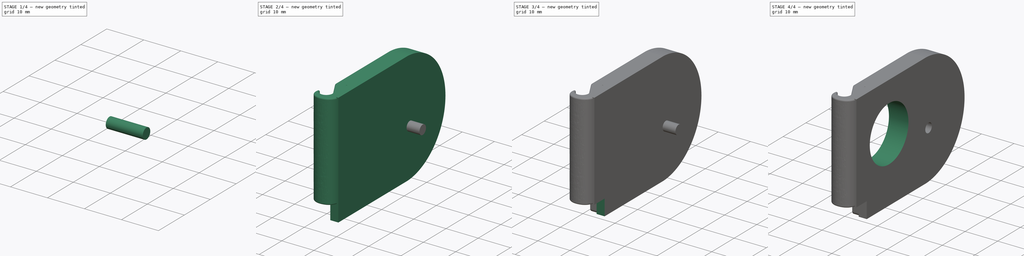
[diagram: build sequence overview — one tinted view per stage of 4, left to right]
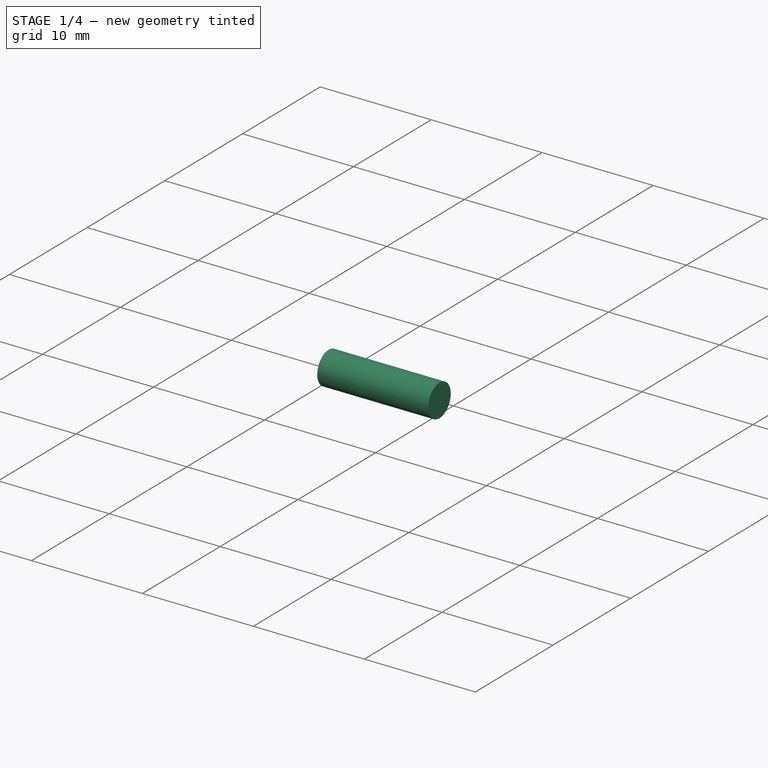
[diagram: stage 1 of 4 — iso view after this stage's code; geometry added in this stage tinted green]
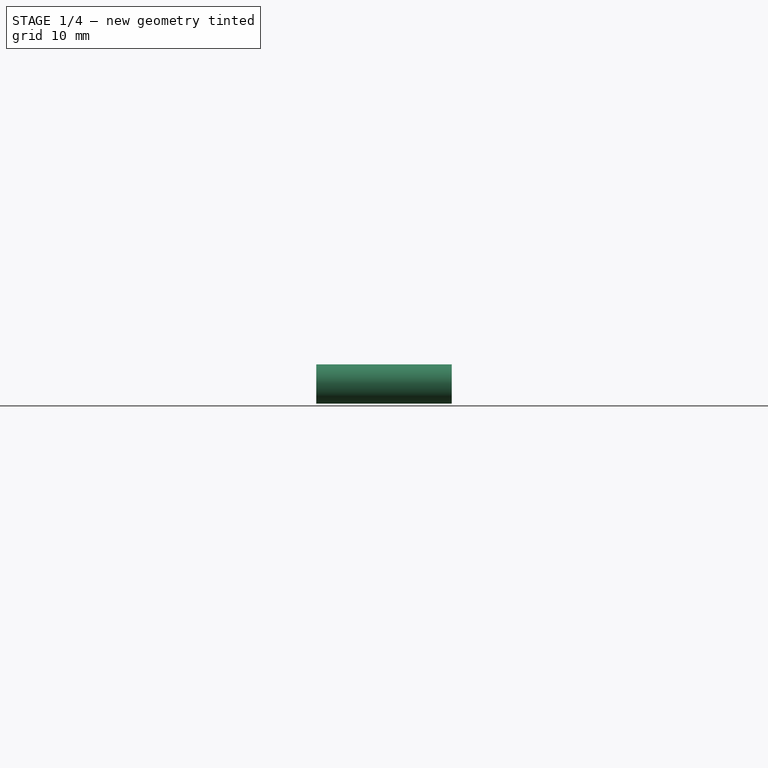
[diagram: stage 1 of 4 — front view after this stage's code; geometry added in this stage tinted green]
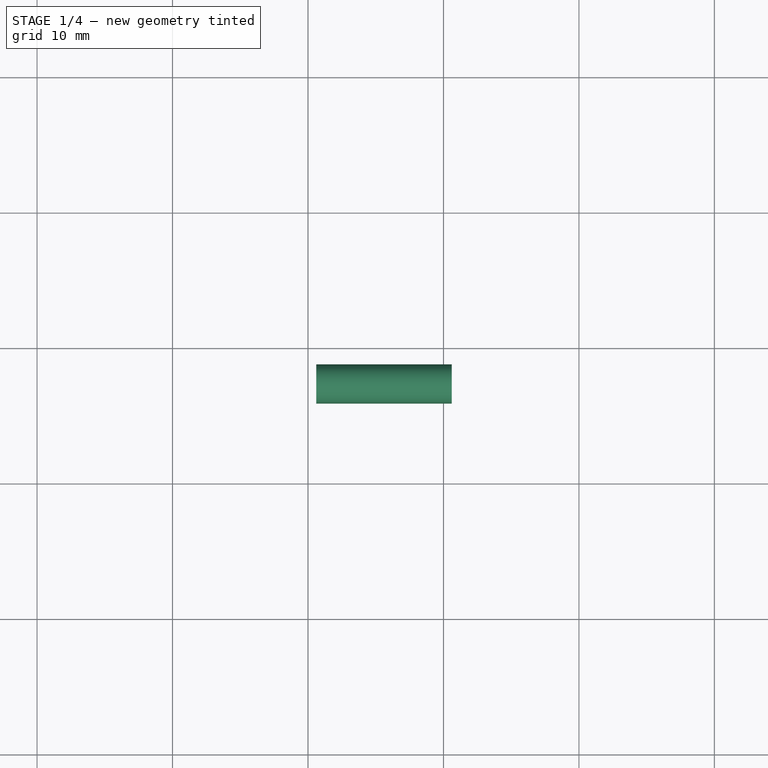
[diagram: stage 1 of 4 — top view after this stage's code; geometry added in this stage tinted green]
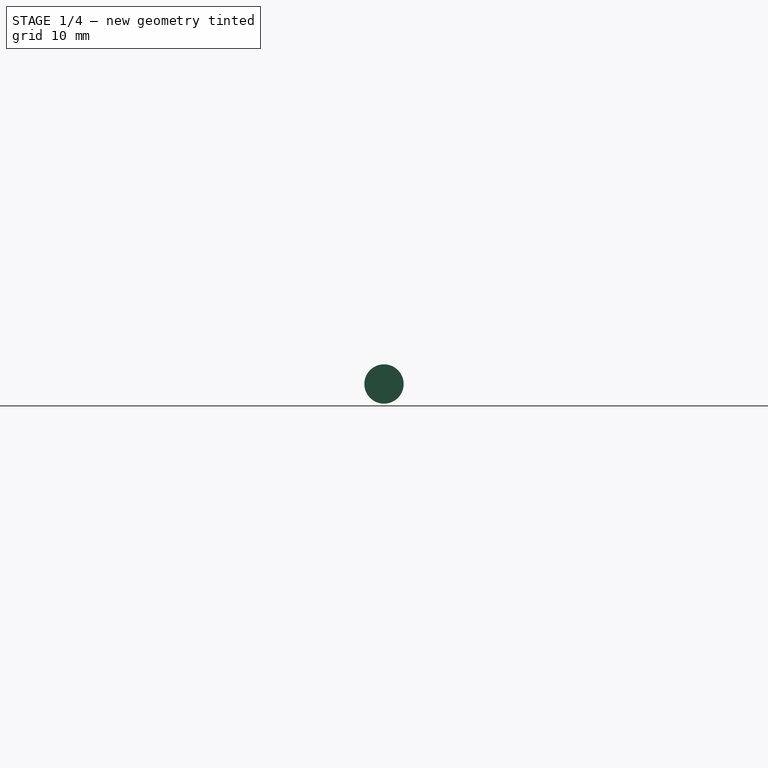
[diagram: stage 1 of 4 — right view after this stage's code; geometry added in this stage tinted green]
FCSTD DOCUMENT  (FreeCAD 0.18R)
Label: bracket-left-flat
License: All rights reserved
LicenseURL: http://en.wikipedia.org/wiki/All_rights_reserved
objects: Sketcher::SketchObject×6, Part::Extrusion×6, Part::Cut×4, Part::Feature×1, Part::MultiFuse×1
note: 18 computed .brp shape members not serialized (recipe doc carries the construction recipe); baked Part::Feature solids carry a one-line shape summary decoded from their .brp

FEATURE [Part::Feature] Part__Feature  label="Left"
  shape: bbox 16.63 x 51.54 x 37.89 mm, 132 faces (baked)
FEATURE [Sketcher::SketchObject] Sketch
  ExternalGeometry = -> [Part__Feature]
  MapMode = 5
  Placement = pos=(0.610609,-1e-16,0) rot=(-0.57735,0.57735,0.57735;4.18879rad)
  Support = -> [Part__Feature]
  sketch-geometry (5):
    g0: Circle [constr] CenterX=-27.3599 CenterY=15 CenterZ=0 NormalX=0 NormalY=0 NormalZ=1 AngleXU=0 Radius=3.5
    g1: LineSegment [constr] StartX=-23.8913 StartY=14.532 StartZ=0 EndX=-24.7719 EndY=12.6437 EndZ=0
    g2: Circle CenterX=-27.3599 CenterY=15 CenterZ=0 NormalX=0 NormalY=0 NormalZ=1 AngleXU=0 Radius=15
    g3: LineSegment [constr] StartX=-21.0206 StartY=28.5946 StartZ=0 EndX=-33.6992 EndY=1.40538 EndZ=0
    g4: LineSegment [constr] StartX=-24.7719 StartY=12.6437 StartZ=0 EndX=-24.7719 EndY=0.224951 EndZ=0
  constraints (14):
    c: Coincident(g0,g-3)
    c: Equal(g0,g-3)
    c: Coincident(g1,g-3)
    c: Coincident(g1,g-3)
    c: Coincident(g2,g0)
    c: Radius(g2) = 15
    c: PointOnObject(g3,g2)
    c: PointOnObject(g3,g2)
    c: PointOnObject(g2,g3)
    c: Parallel(g3,g1)
    c: Coincident(g4,g1)
    c: Vertical(g4)
    c: PointOnObject(g4,g2)
    c: Angle(g4,g1) = 2.70526
FEATURE [Part::Extrusion] Extrude
  Base = -> Sketch
  Dir = (-1,1e-16,1e-16)
  DirMode = 2
  FaceMakerClass = Part::FaceMakerBullseye
  LengthFwd = 50
  LengthRev = 0
  Solid = true
  Symmetric = false
FEATURE [Part::Cut] Cut
  Base = -> Part__Feature
  Tool = -> Extrude
FEATURE [Sketcher::SketchObject] Sketch004
  ExternalGeometry = -> [Cut]
  MapMode = 5
  Placement = pos=(0.610609,-1e-16,0) rot=(-0.57735,0.57735,0.57735;4.18879rad)
  Support = -> [Cut]
  sketch-geometry (1):
    g0: Circle CenterX=-27.3599 CenterY=15 CenterZ=0 NormalX=0 NormalY=0 NormalZ=1 AngleXU=0 Radius=1.45
  constraints (2):
    c: Coincident(g0,g-3)
    c: Radius(g0) = 1.45
FEATURE [Part::Extrusion] Extrude004
  Base = -> Sketch004
  Dir = (-1,1e-16,1e-16)
  DirMode = 2
  FaceMakerClass = Part::FaceMakerBullseye
  LengthFwd = -10
  LengthRev = 0
  Solid = true
  Symmetric = false
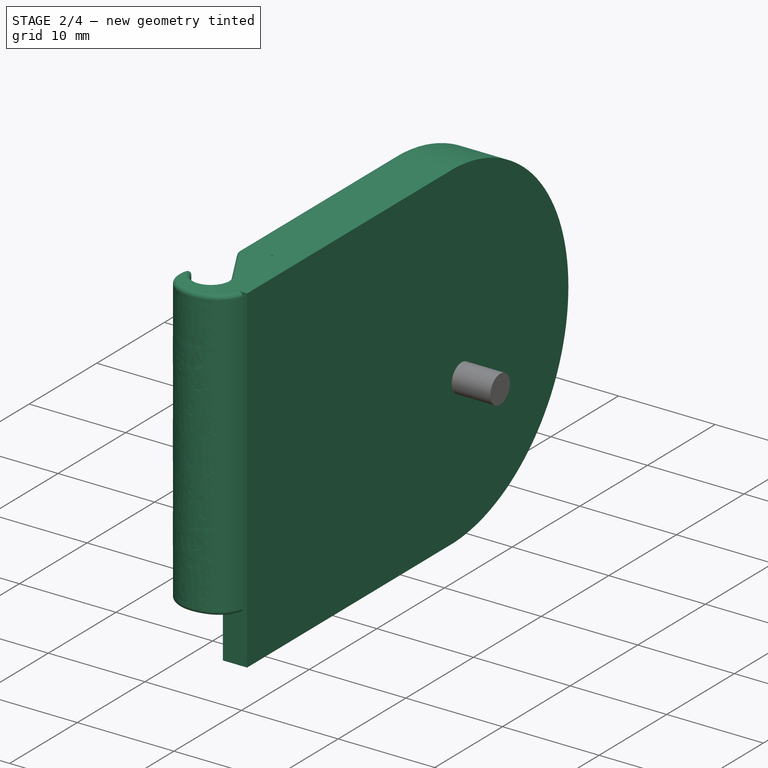
[diagram: stage 2 of 4 — iso view after this stage's code; geometry added in this stage tinted green]
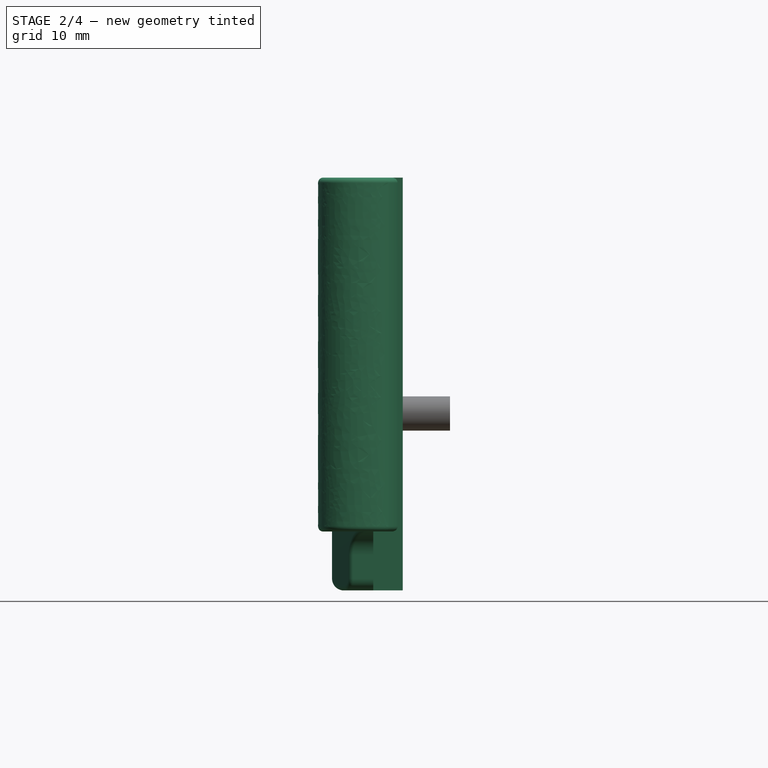
[diagram: stage 2 of 4 — front view after this stage's code; geometry added in this stage tinted green]
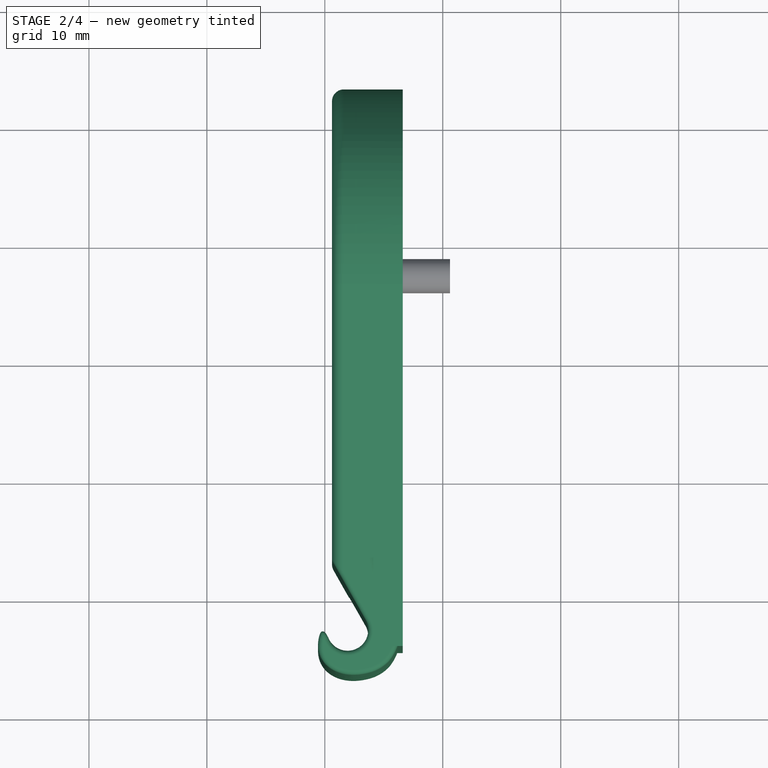
[diagram: stage 2 of 4 — top view after this stage's code; geometry added in this stage tinted green]
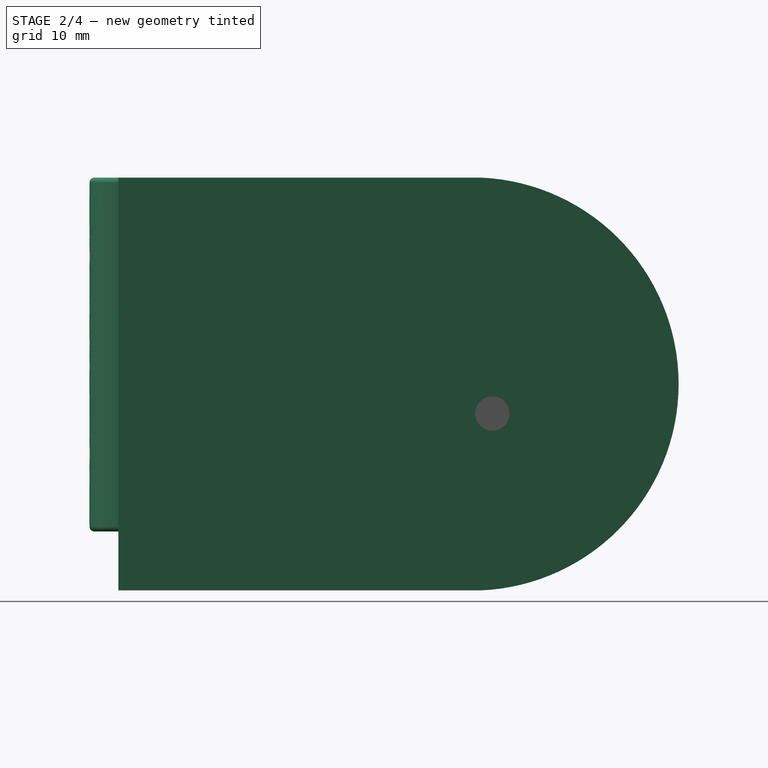
[diagram: stage 2 of 4 — right view after this stage's code; geometry added in this stage tinted green]
FEATURE [Sketcher::SketchObject] Sketch001
  ExternalGeometry = -> [Cut]
  MapMode = 5
  Placement = pos=(0.610609,-1e-16,0) rot=(-0.57735,0.57735,0.57735;4.18879rad)
  Support = -> [Cut]
  sketch-geometry (7):
    g0: ArcOfCircle [constr] CenterX=-25.6352 CenterY=17.5 CenterZ=0 NormalX=0 NormalY=0 NormalZ=1 AngleXU=0 Radius=17.5141 StartAngle=1.61099 EndAngle=4.6722
    g1: LineSegment [constr] StartX=-26.3389 StartY=35 StartZ=0 EndX=-3.15521 EndY=35 EndZ=0
    g2: LineSegment [constr] StartX=-26.3389 StartY=-3.6e-15 StartZ=0 EndX=-3.15521 EndY=-2e-16 EndZ=0
    g3: LineSegment StartX=-3.15521 StartY=-2e-16 StartZ=0 EndX=-3.15521 EndY=35 EndZ=0
    g4: LineSegment StartX=-3.15521 StartY=35 StartZ=0 EndX=4.34479 EndY=35 EndZ=0
    g5: LineSegment StartX=4.34479 StartY=35 StartZ=0 EndX=4.34479 EndY=0 EndZ=0
    g6: LineSegment StartX=4.34479 StartY=0 StartZ=0 EndX=-3.15521 EndY=-2e-16 EndZ=0
  constraints (19):
    c: Coincident(g0,g-5)
    c: Coincident(g0,g-3)
    c: Coincident(g0,g-4)
    c: Coincident(g1,g0)
    c: PointOnObject(g1,g-5)
    c: Coincident(g2,g0)
    c: PointOnObject(g2,g-3)
    c: Coincident(g3,g2)
    c: Coincident(g3,g1)
    c: Vertical(g3)
    c: PointOnObject(g-6,g3)
    c: Coincident(g4,g1)
    c: Horizontal(g4)
    c: Coincident(g5,g4)
    c: PointOnObject(g5,g-1)
    c: Vertical(g5)
    c: Coincident(g6,g5)
    c: Coincident(g6,g2)
    c: DistanceX(g6,g6) = 7.5
FEATURE [Part::Extrusion] Extrude001
  Base = -> Sketch001
  Dir = (-1,1e-16,1e-16)
  DirMode = 2
  FaceMakerClass = Part::FaceMakerBullseye
  LengthFwd = -2.5
  LengthRev = 0
  Placement = pos=(3.5,0,0) rot=(0,0,1;0rad)
  Solid = true
  Symmetric = false
FEATURE [Sketcher::SketchObject] Sketch002
  ExternalGeometry = -> [Cut]
  MapMode = 5
  Placement = pos=(0.610609,-1e-16,0) rot=(-0.57735,0.57735,0.57735;4.18879rad)
  Support = -> [Cut]
  sketch-geometry (7):
    g0: ArcOfCircle CenterX=-25.6352 CenterY=17.5 CenterZ=0 NormalX=0 NormalY=0 NormalZ=1 AngleXU=0 Radius=17.5141 StartAngle=1.61099 EndAngle=4.6722
    g1: LineSegment StartX=-26.3389 StartY=35 StartZ=0 EndX=-3.15521 EndY=35 EndZ=0
    g2: LineSegment StartX=-26.3389 StartY=-3.6e-15 StartZ=0 EndX=-3.15521 EndY=-2e-16 EndZ=0
    g3: LineSegment StartX=-3.15521 StartY=-2e-16 StartZ=0 EndX=-3.15521 EndY=35 EndZ=0
    g4: LineSegment [constr] StartX=-3.15521 StartY=35 StartZ=0 EndX=4.34479 EndY=35 EndZ=0
    g5: LineSegment [constr] StartX=4.34479 StartY=35 StartZ=0 EndX=4.34479 EndY=0 EndZ=0
    g6: LineSegment [constr] StartX=4.34479 StartY=0 StartZ=0 EndX=-3.15521 EndY=-2e-16 EndZ=0
  constraints (19):
    c: Coincident(g0,g-5)
    c: Coincident(g0,g-3)
    c: Coincident(g0,g-4)
    c: Coincident(g1,g0)
    c: PointOnObject(g1,g-5)
    c: Coincident(g2,g0)
    c: PointOnObject(g2,g-3)
    c: Coincident(g3,g2)
    c: Coincident(g3,g1)
    c: Vertical(g3)
    c: PointOnObject(g-6,g3)
    c: Coincident(g4,g1)
    c: Horizontal(g4)
    c: Coincident(g5,g4)
    c: PointOnObject(g5,g-1)
    c: Vertical(g5)
    c: Coincident(g6,g5)
    c: Coincident(g6,g2)
    c: DistanceX(g6,g6) = 7.5
FEATURE [Part::Extrusion] Extrude002
  Base = -> Sketch002
  Dir = (-1,1e-16,1e-16)
  DirMode = 2
  FaceMakerClass = Part::FaceMakerBullseye
  LengthFwd = -4.5
  LengthRev = 0
  Placement = pos=(1.5,0,0) rot=(0,0,1;0rad)
  Solid = true
  Symmetric = false
FEATURE [Part::MultiFuse] Fusion
  Shapes = -> [Extrude001,Extrude002,Cut]
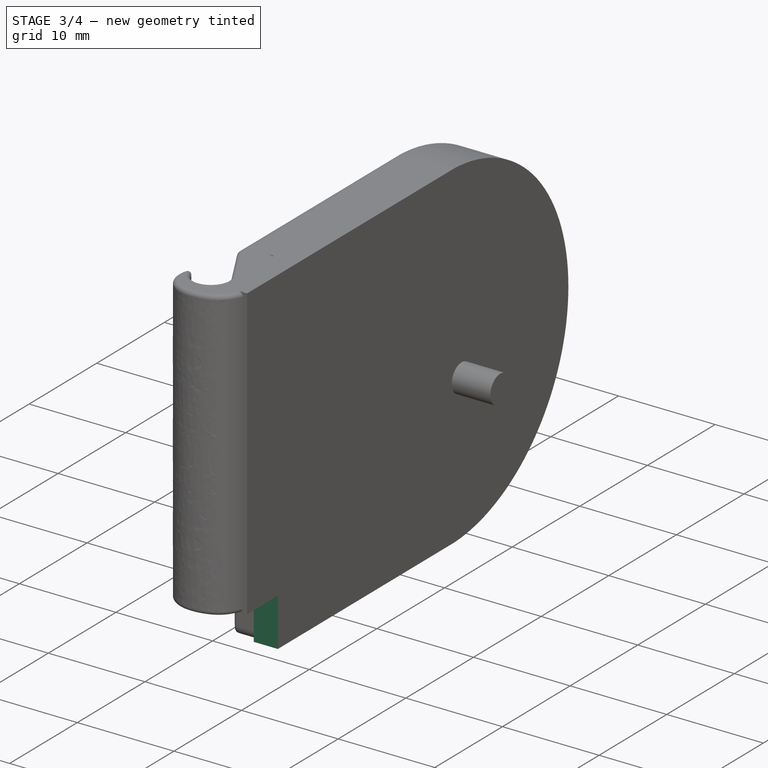
[diagram: stage 3 of 4 — iso view after this stage's code; geometry added in this stage tinted green]
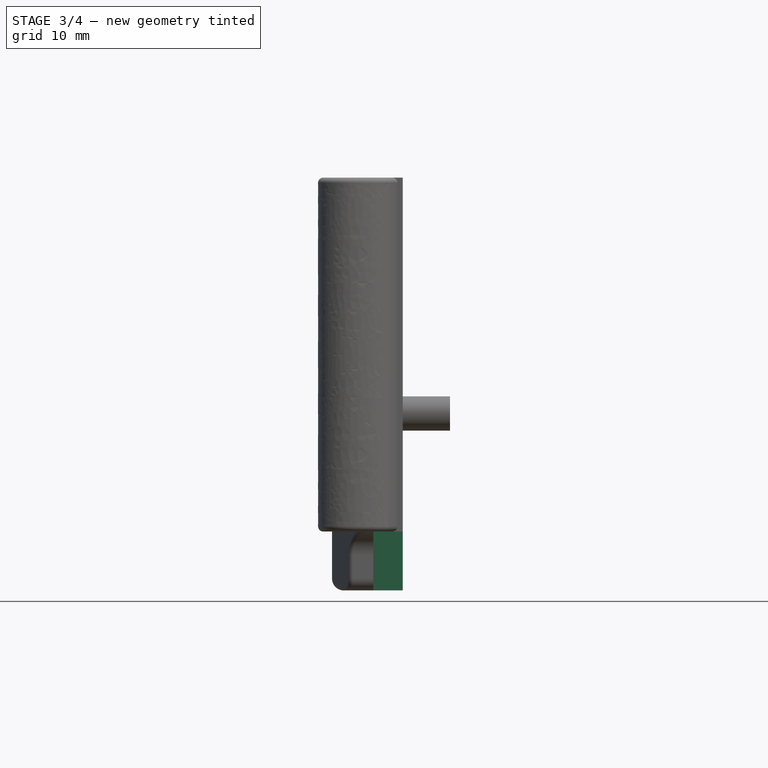
[diagram: stage 3 of 4 — front view after this stage's code; geometry added in this stage tinted green]
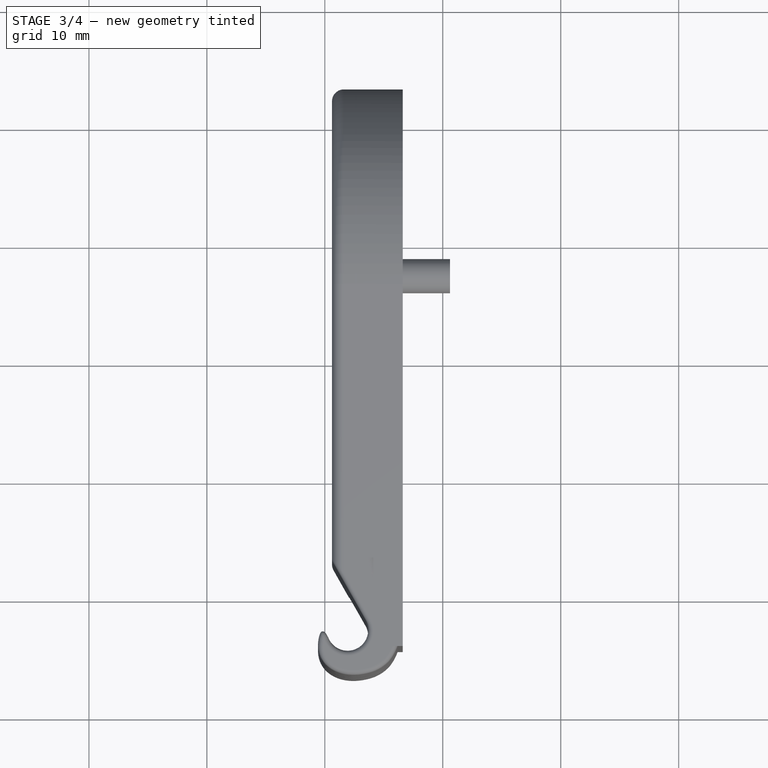
[diagram: stage 3 of 4 — top view after this stage's code; geometry added in this stage tinted green]
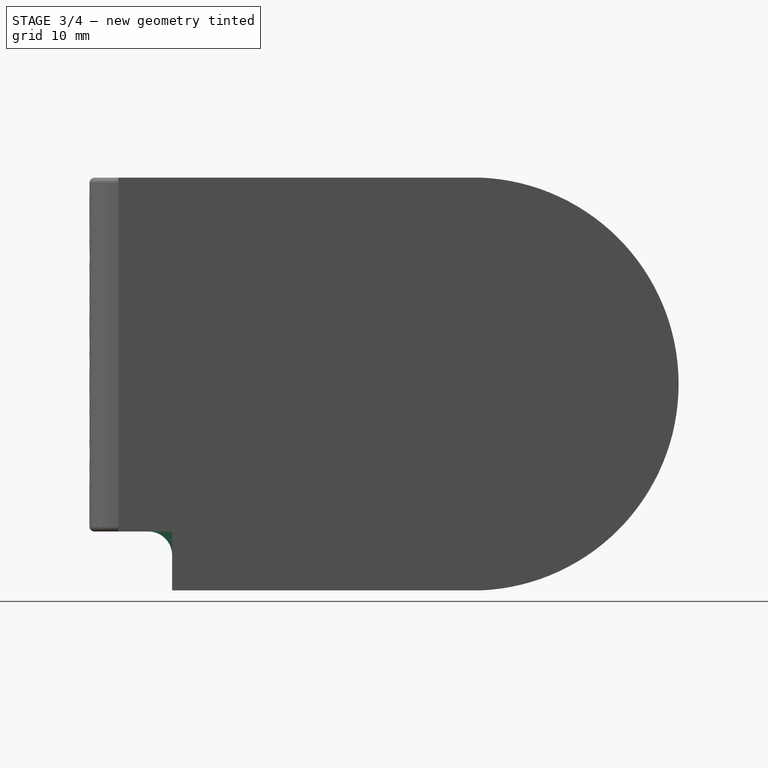
[diagram: stage 3 of 4 — right view after this stage's code; geometry added in this stage tinted green]
FEATURE [Sketcher::SketchObject] Sketch003
  ExternalGeometry = -> [Extrude001,Cut]
  MapMode = 5
  Placement = pos=(4.11061,-1e-16,-1e-16) rot=(-0.57735,0.57735,0.57735;4.18879rad)
  Support = -> [Extrude001]
  sketch-geometry (4):
    g0: LineSegment StartX=4.34479 StartY=4.99219 StartZ=0 EndX=-0.208537 EndY=4.99219 EndZ=0
    g1: LineSegment StartX=-0.208537 StartY=4.99219 StartZ=0 EndX=-0.208537 EndY=0 EndZ=0
    g2: LineSegment StartX=-0.208537 StartY=0 StartZ=0 EndX=4.34479 EndY=-6e-16 EndZ=0
    g3: LineSegment StartX=4.34479 StartY=-6e-16 StartZ=0 EndX=4.34479 EndY=4.99219 EndZ=0
  constraints (11):
    c: PointOnObject(g0,g-3)
    c: Horizontal(g0)
    c: Coincident(g1,g0)
    c: PointOnObject(g1,g-4)
    c: Vertical(g1)
    c: PointOnObject(g-5,g1)
    c: PointOnObject(g-6,g0)
    c: Coincident(g2,g1)
    c: Coincident(g2,g-4)
    c: Coincident(g3,g2)
    c: Coincident(g3,g0)
FEATURE [Part::Extrusion] Extrude003
  Base = -> Sketch003
  Dir = (-1,2e-16,2e-16)
  DirMode = 2
  FaceMakerClass = Part::FaceMakerBullseye
  LengthFwd = -2.5
  LengthRev = 0
  Solid = true
  Symmetric = false
FEATURE [Part::Cut] Cut001
  Base = -> Fusion
  Tool = -> Extrude003
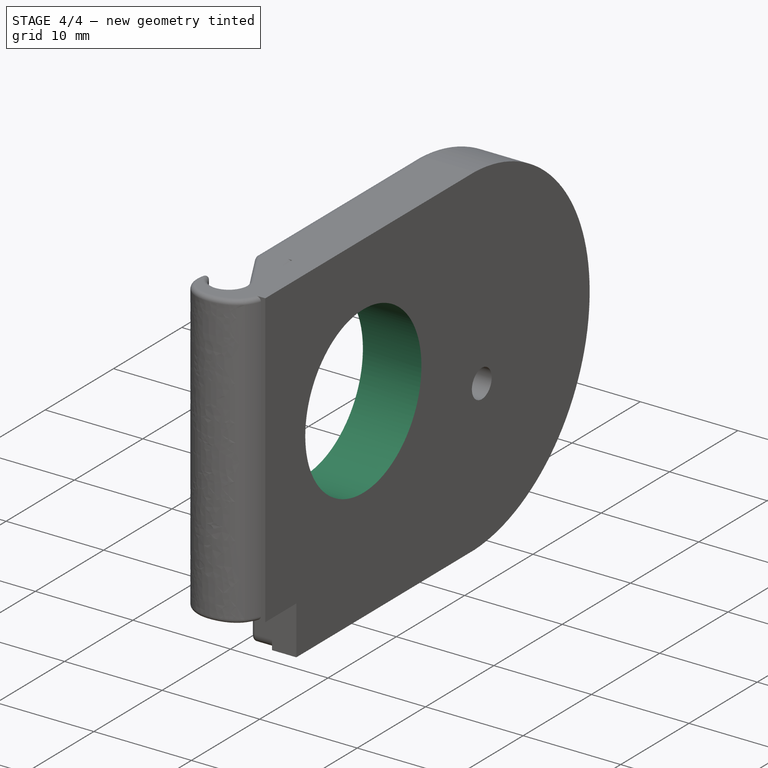
[diagram: stage 4 of 4 — iso view after this stage's code; geometry added in this stage tinted green]
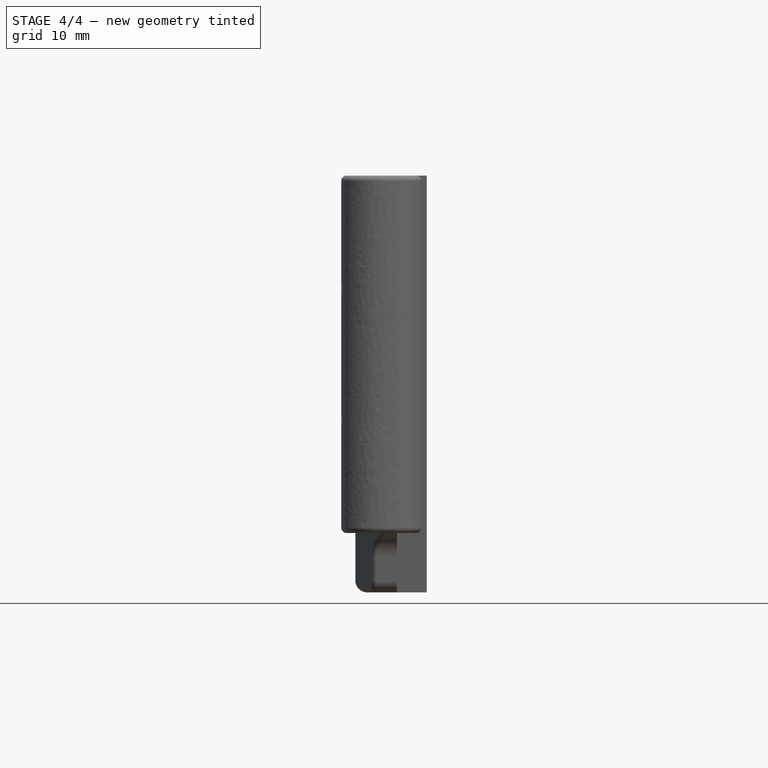
[diagram: stage 4 of 4 — front view after this stage's code; geometry added in this stage tinted green]
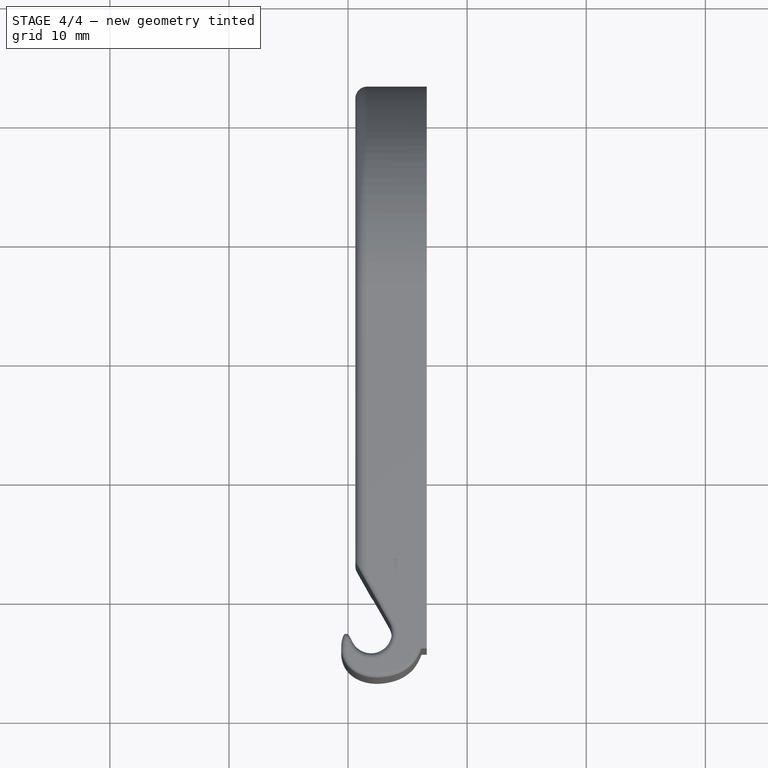
[diagram: stage 4 of 4 — top view after this stage's code; geometry added in this stage tinted green]
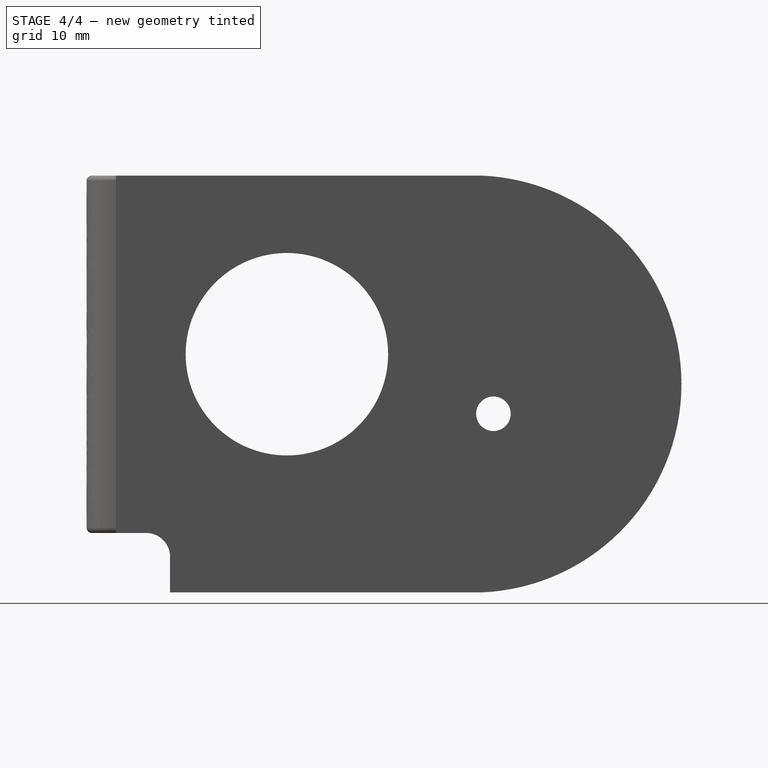
[diagram: stage 4 of 4 — right view after this stage's code; geometry added in this stage tinted green]
FEATURE [Part::Cut] Cut002
  Base = -> Cut001
  Tool = -> Extrude004
FEATURE [Sketcher::SketchObject] Sketch006
  ExternalGeometry = -> [Cut002]
  MapMode = 5
  Placement = pos=(0.610609,-1e-16,0) rot=(-0.57735,0.57735,0.57735;4.18879rad)
  Support = -> [Cut002]
  sketch-geometry (1):
    g0: Circle CenterX=-10.0172 CenterY=20 CenterZ=0 NormalX=0 NormalY=0 NormalZ=1 AngleXU=0 Radius=8.5
  constraints (3):
    c: Radius(g0) = 8.5
    c: DistanceX(g0,g-3) = 8
    c: DistanceY(g-3,g0) = 20
FEATURE [Part::Extrusion] Extrude006
  Base = -> Sketch006
  Dir = (-1,1e-16,1e-16)
  DirMode = 2
  FaceMakerClass = Part::FaceMakerBullseye
  LengthFwd = -10
  LengthRev = 0
  Solid = true
  Symmetric = false
FEATURE [Part::Cut] Cut003
  Base = -> Cut002
  Tool = -> Extrude006
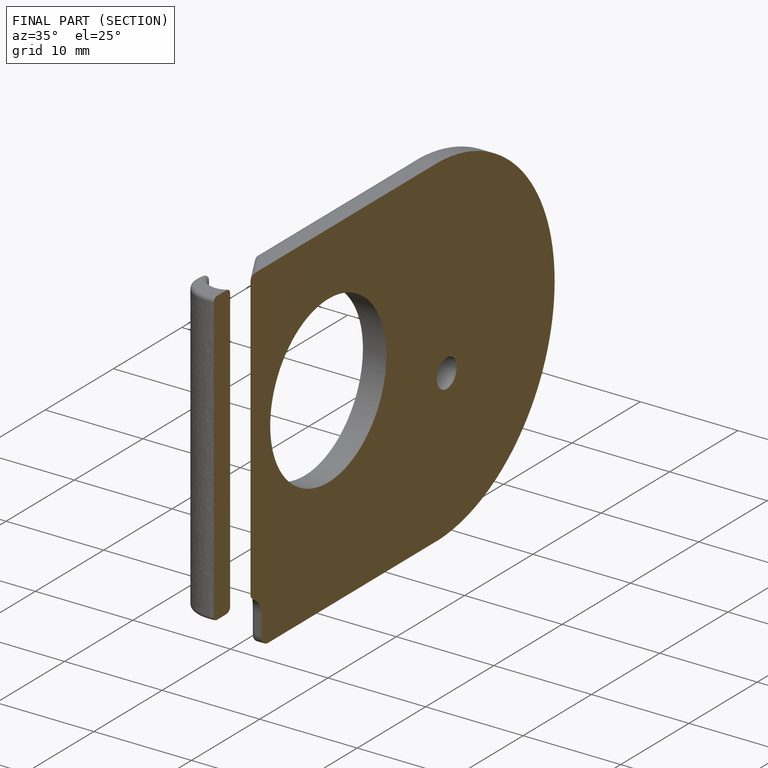
[diagram: finished part — half-section view (interior)]
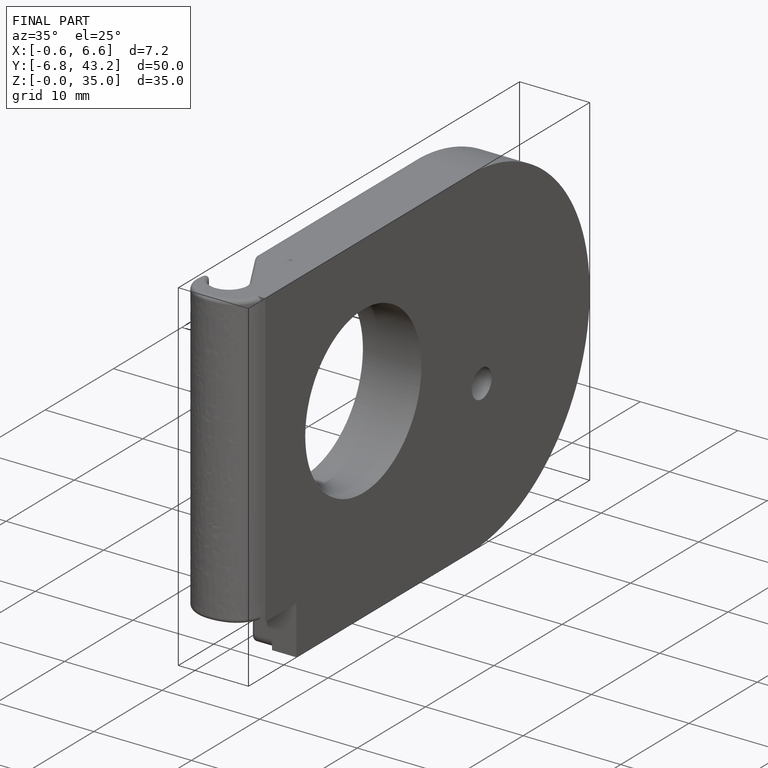
[diagram: finished part — iso view with bounding-box wireframe]
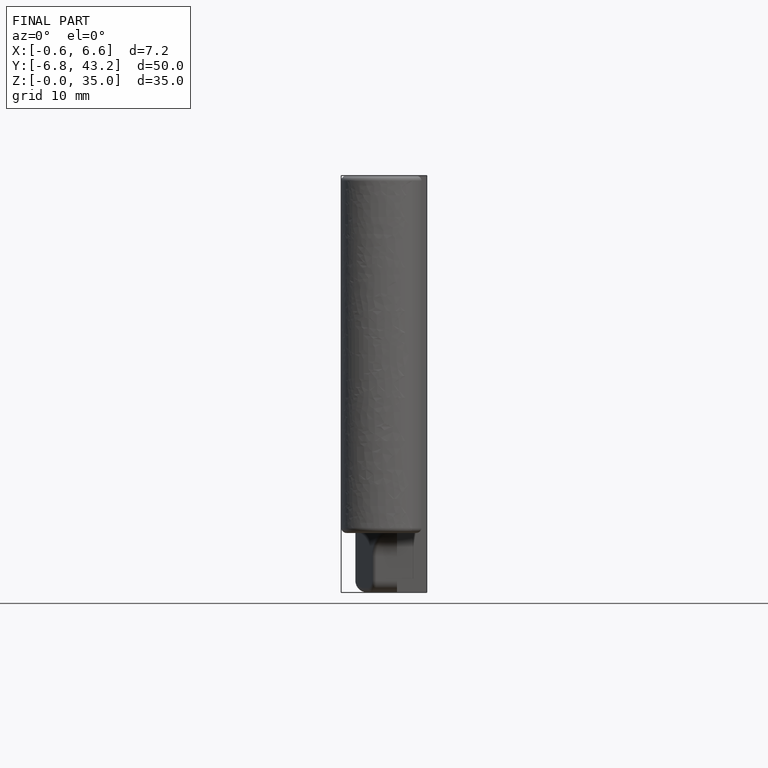
[diagram: finished part — front view with bounding-box wireframe]
